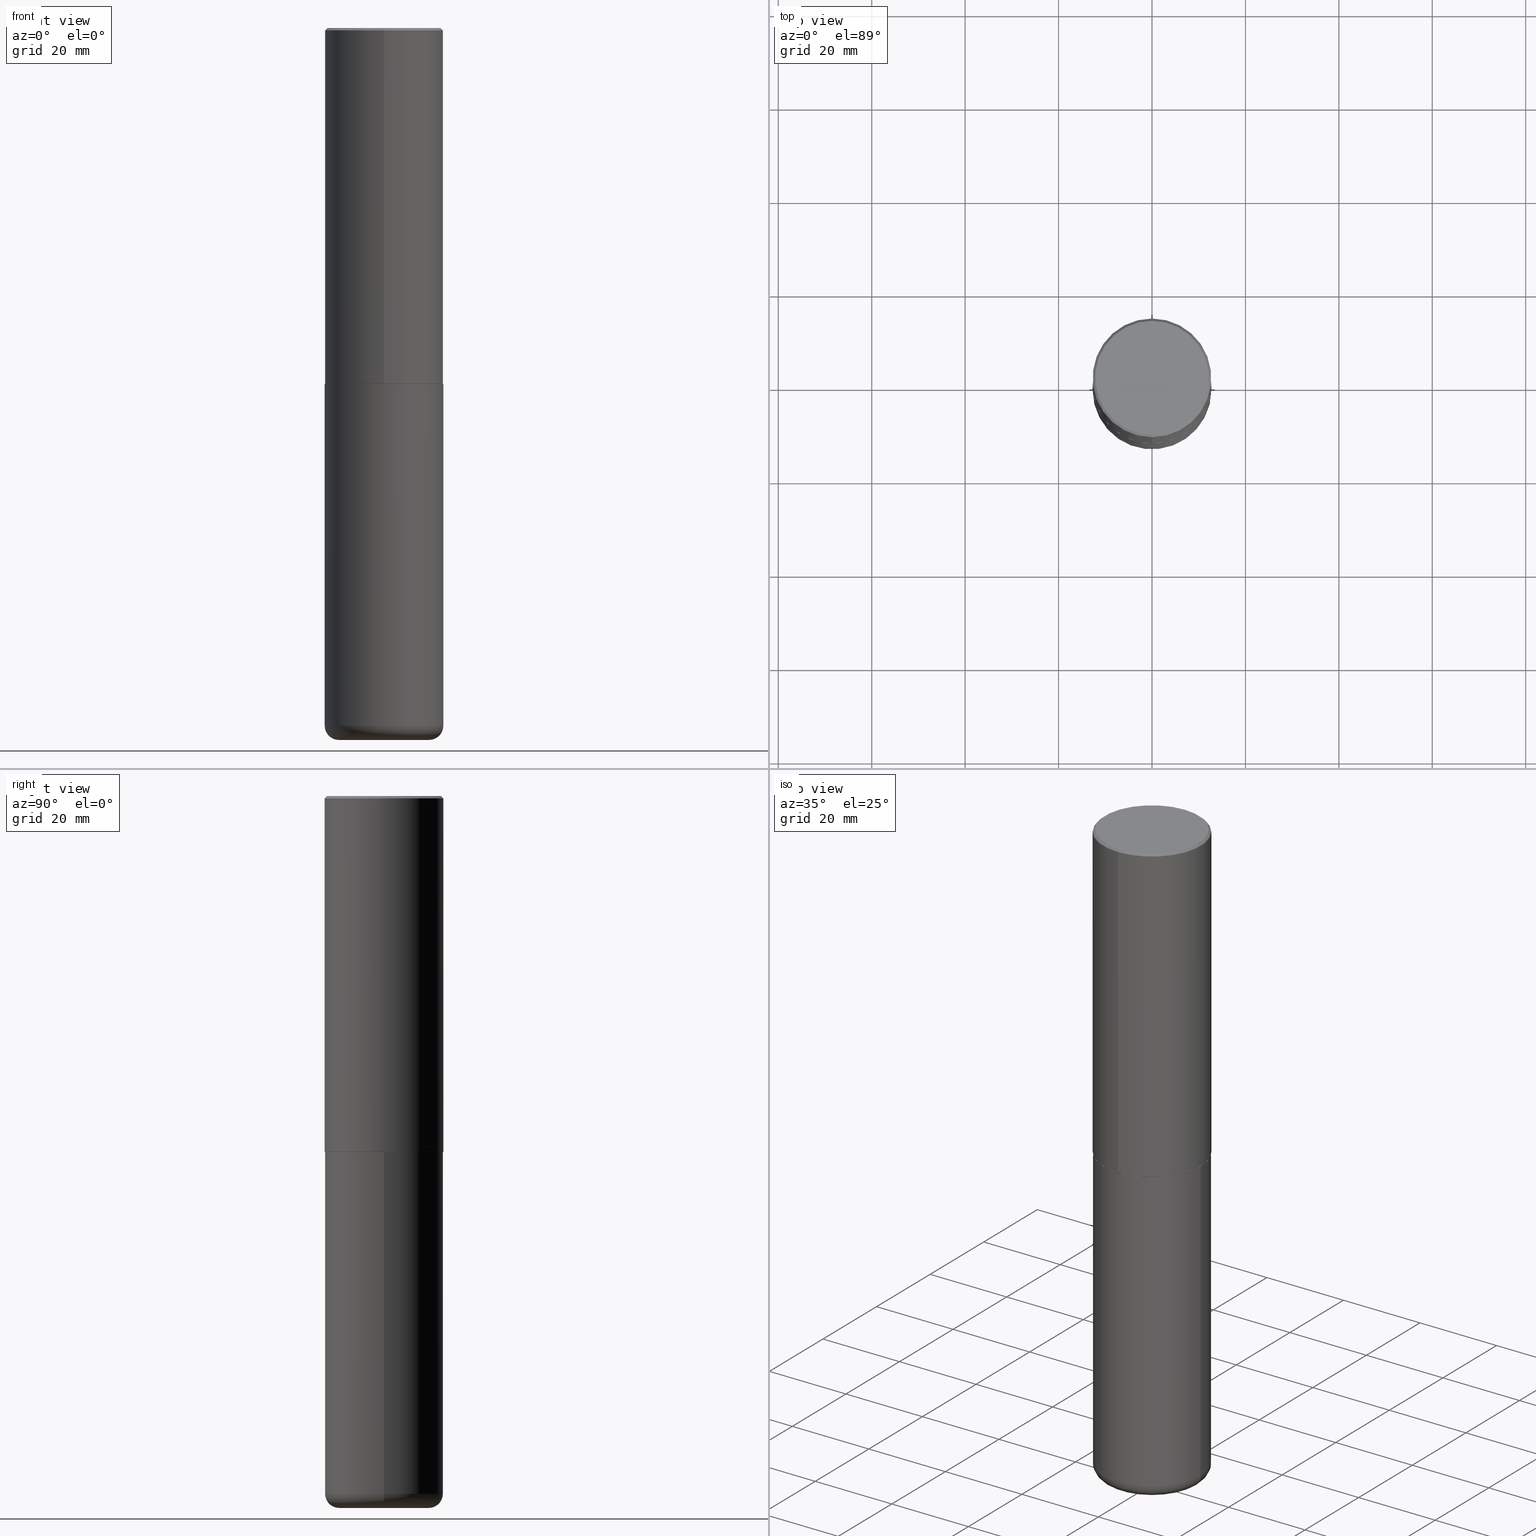
[diagram: canonical four-view strip — front | top / right | iso, engineering-drawing reading convention]
A machine part, canonical four-view strip (front | top / right | iso — engineering-drawing reading convention). The complete STEP part file that produces these views, byte-faithful:
ISO-10303-21;
HEADER;
FILE_DESCRIPTION (( 'STEP AP203' ),
    '1' );
FILE_NAME ('37734.STEP',
    '2024-03-02T09:48:13',
    ( '' ),
    ( '' ),
    'SwSTEP 2.0',
    'SolidWorks 2023',
    '' );
FILE_SCHEMA (( 'CONFIG_CONTROL_DESIGN' ));
ENDSEC;

DATA;
#1 = FACE_OUTER_BOUND ( 'NONE', #327, .T. ) ;
#2 = DIRECTION ( 'NONE',  ( -2.444898033699712212E-29, 3.492298717528625990E-15, 1.000000000000000000 ) ) ;
#3 = ORIENTED_EDGE ( 'NONE', *, *, #210, .F. ) ;
#4 = DIRECTION ( 'NONE',  ( -6.982962677686265922E-15, -1.000000000000000000, 3.491643216902136408E-15 ) ) ;
#5 = FACE_OUTER_BOUND ( 'NONE', #81, .T. ) ;
#6 = PRODUCT_DEFINITION_SHAPE ( 'NONE', 'NONE',  #220 ) ;
#7 = CARTESIAN_POINT ( 'NONE',  ( 0.000000000000000000, 0.000000000000000000, 0.000000000000000000 ) ) ;
#8 = CIRCLE ( 'NONE', #194, 0.1199999999999999539 ) ;
#9 = CC_DESIGN_SECURITY_CLASSIFICATION ( #375, ( #137 ) ) ;
#10 = ORIENTED_EDGE ( 'NONE', *, *, #321, .T. ) ;
#11 = CC_DESIGN_PERSON_AND_ORGANIZATION_ASSIGNMENT ( #84, #183, ( #375 ) ) ;
#12 = LENGTH_MEASURE_WITH_UNIT ( LENGTH_MEASURE( 0.02539999999999999897 ), #333 );
#13 = ORIENTED_EDGE ( 'NONE', *, *, #369, .T. ) ;
#14 = DIRECTION ( 'NONE',  ( -2.445468806185136597E-29, 3.491481338843145583E-15, 1.000000000000000000 ) ) ;
#15 = ADVANCED_FACE ( 'NONE', ( #92 ), #184, .T. ) ;
#16 = ORIENTED_EDGE ( 'NONE', *, *, #305, .T. ) ;
#17 = AXIS2_PLACEMENT_3D ( 'NONE', #343, #379, #59 ) ;
#18 = ORIENTED_EDGE ( 'NONE', *, *, #176, .T. ) ;
#19 = EDGE_CURVE ( 'NONE', #355, #38, #157, .T. ) ;
#20 = DIRECTION ( 'NONE',  ( -6.982962677686265922E-15, -1.000000000000000000, 3.492298717528625990E-15 ) ) ;
#21 = CC_DESIGN_DATE_AND_TIME_ASSIGNMENT ( #412, #370, ( #220 ) ) ;
#22 = DATE_TIME_ROLE ( 'classification_date' ) ;
#23 = DIRECTION ( 'NONE',  ( -2.445468806185136597E-29, 3.491481338843145583E-15, 1.000000000000000000 ) ) ;
#24 = APPROVAL_DATE_TIME ( #349, #142 ) ;
#25 = CARTESIAN_POINT ( 'NONE',  ( 7.334694101099137475E-29, -1.047689615258587837E-14, -3.000000000000000444 ) ) ;
#26 = AXIS2_PLACEMENT_3D ( 'NONE', #151, #288, #314 ) ;
#27 = CIRCLE ( 'NONE', #96, 0.5000000000000002220 ) ;
#28 = DIRECTION ( 'NONE',  ( -6.982962677686265922E-15, -1.000000000000000000, 3.284787166730577015E-15 ) ) ;
#29 = CARTESIAN_POINT ( 'NONE',  ( 1.437935658036860328E-28, -2.052991027239769923E-14, -5.880000000000000782 ) ) ;
#30 = EDGE_CURVE ( 'NONE', #306, #362, #78, .T. ) ;
#31 = PLANE ( 'NONE',  #136 ) ;
#32 = ORIENTED_EDGE ( 'NONE', *, *, #85, .F. ) ;
#33 = AXIS2_PLACEMENT_3D ( 'NONE', #25, #181, #318 ) ;
#34 = FACE_OUTER_BOUND ( 'NONE', #390, .T. ) ;
#35 = ORIENTED_EDGE ( 'NONE', *, *, #290, .F. ) ;
#36 = CC_DESIGN_PERSON_AND_ORGANIZATION_ASSIGNMENT ( #215, #372, ( #137 ) ) ;
#37 = CARTESIAN_POINT ( 'NONE',  ( 4.889796067399450837E-31, -6.984597435057287381E-17, -0.02000000000000010797 ) ) ;
#38 = VERTEX_POINT ( 'NONE', #152 ) ;
#39 = DIRECTION ( 'NONE',  ( 6.982962677686265922E-15, 1.000000000000000000, -3.491643216902136408E-15 ) ) ;
#40 = ORIENTED_EDGE ( 'NONE', *, *, #85, .T. ) ;
#41 = PLANE ( 'NONE',  #381 ) ;
#42 = PERSON ( 'UNSPECIFIED', 'UNSPECIFIED', 'UNSPECIFIED', ('UNSPECIFIED'), ('UNSPECIFIED'), ('UNSPECIFIED') ) ;
#43 = DIRECTION ( 'NONE',  ( -6.982962677686265922E-15, -1.000000000000000000, 3.492298717528625990E-15 ) ) ;
#44 = CONICAL_SURFACE ( 'NONE', #374, 0.5000000000000000000, 0.7853981633974446153 ) ;
#45 = CARTESIAN_POINT ( 'NONE',  ( -3.484498376165373188E-15, -0.4990000000000104352, -2.999999999999998668 ) ) ;
#46 = AXIS2_PLACEMENT_3D ( 'NONE', #132, #199, #193 ) ;
#47 = EDGE_LOOP ( 'NONE', ( #242, #40, #340, #316 ) ) ;
#48 = CYLINDRICAL_SURFACE ( 'NONE', #66, 0.5000000000000000000 ) ;
#49 = ORIENTED_EDGE ( 'NONE', *, *, #383, .F. ) ;
#50 = CARTESIAN_POINT ( 'NONE',  ( 0.000000000000000000, 0.000000000000000000, 0.000000000000000000 ) ) ;
#51 = ORIENTED_EDGE ( 'NONE', *, *, #305, .F. ) ;
#52 = CC_DESIGN_DATE_AND_TIME_ASSIGNMENT ( #346, #22, ( #375 ) ) ;
#53 = PLANE ( 'NONE',  #106 ) ;
#54 = LINE ( 'NONE', #409, #112 ) ;
#55 = APPROVAL_ROLE ( '' ) ;
#56 = APPLICATION_CONTEXT ( 'configuration controlled 3d designs of mechanical parts and assemblies' ) ;
#57 = DIRECTION ( 'NONE',  ( 4.937700262164529898E-15, 0.7071067811865424657, -0.7071067811865525687 ) ) ;
#58 = DESIGN_CONTEXT ( 'detailed design', #56, 'design' ) ;
#59 = DIRECTION ( 'NONE',  ( -6.982962677686266711E-15, -1.000000000000000000, 3.278217592397114284E-15 ) ) ;
#60 = CIRCLE ( 'NONE', #124, 0.5000000000000000000 ) ;
#61 = COORDINATED_UNIVERSAL_TIME_OFFSET ( 5, 0, .BEHIND. ) ;
#62 = DIRECTION ( 'NONE',  ( -6.982962677686265922E-15, -1.000000000000000000, 3.491643216902136408E-15 ) ) ;
#63 = DIRECTION ( 'NONE',  ( -2.445468806185136597E-29, 3.491481338843145583E-15, 1.000000000000000000 ) ) ;
#64 = ORIENTED_EDGE ( 'NONE', *, *, #162, .F. ) ;
#65 = CARTESIAN_POINT ( 'NONE',  ( 3.552713678800539584E-15, 0.4999999999999898970, -2.999000000000001886 ) ) ;
#66 = AXIS2_PLACEMENT_3D ( 'NONE', #7, #307, #135 ) ;
#67 = DIRECTION ( 'NONE',  ( 1.000000000000000000, -6.982962677686261977E-15, 0.000000000000000000 ) ) ;
#68 = CARTESIAN_POINT ( 'NONE',  ( 0.000000000000000000, 0.000000000000000000, 0.000000000000000000 ) ) ;
#69 = CARTESIAN_POINT ( 'NONE',  ( -0.5000000000000000000, 3.552713678800500929E-15, -2.459467545127452891E-29 ) ) ;
#70 = TOROIDAL_SURFACE ( 'NONE', #229, 0.3799999999999999489, 0.1199999999999999539 ) ;
#71 = CC_DESIGN_APPROVAL ( #281, ( #137 ) ) ;
#72 = ADVANCED_FACE ( 'NONE', ( #247 ), #185, .T. ) ;
#73 = DIRECTION ( 'NONE',  ( -4.937700262165728178E-15, -0.7071067811867141062, 0.7071067811863809283 ) ) ;
#74 = ORIENTED_EDGE ( 'NONE', *, *, #393, .T. ) ;
#75 = CARTESIAN_POINT ( 'NONE',  ( -3.491481338843061569E-15, -0.5000000000000107692, -2.998999999999998778 ) ) ;
#76 = CARTESIAN_POINT ( 'NONE',  ( 3.421651712066270057E-15, 0.4799999999999999267, -1.573466742882299844E-15 ) ) ;
#77 = EDGE_LOOP ( 'NONE', ( #18, #158 ) ) ;
#78 = CIRCLE ( 'NONE', #17, 0.5000000000000002220 ) ;
#79 = ORIENTED_EDGE ( 'NONE', *, *, #93, .T. ) ;
#80 = CYLINDRICAL_SURFACE ( 'NONE', #292, 0.5000000000000001110 ) ;
#81 = EDGE_LOOP ( 'NONE', ( #16, #418, #246, #145 ) ) ;
#82 = APPROVAL_STATUS ( 'not_yet_approved' ) ;
#83 = CARTESIAN_POINT ( 'NONE',  ( 7.336406418555409790E-29, -1.047444401652943635E-14, -3.000000000000000444 ) ) ;
#84 = PERSON_AND_ORGANIZATION ( #42, #186 ) ;
#85 = EDGE_CURVE ( 'NONE', #110, #128, #311, .T. ) ;
#86 = CARTESIAN_POINT ( 'NONE',  ( -3.484498376165373188E-15, -0.4990000000000104352, -2.999999999999998668 ) ) ;
#87 = CC_DESIGN_APPROVAL ( #90, ( #220 ) ) ;
#88 = PERSON_AND_ORGANIZATION ( #42, #186 ) ;
#89 = DIRECTION ( 'NONE',  ( 1.000000000000000000, -6.982962677686266711E-15, 0.000000000000000000 ) ) ;
#90 = APPROVAL ( #236, 'UNSPECIFIED' ) ;
#91 = SHAPE_DEFINITION_REPRESENTATION ( #6, #398 ) ;
#92 = FACE_OUTER_BOUND ( 'NONE', #271, .T. ) ;
#93 = EDGE_CURVE ( 'NONE', #110, #414, #251, .T. ) ;
#94 = COORDINATED_UNIVERSAL_TIME_OFFSET ( 5, 0, .BEHIND. ) ;
#95 = CARTESIAN_POINT ( 'NONE',  ( -0.3799999999999999489, -1.761301111538384868E-14, -6.000000000000000888 ) ) ;
#96 = AXIS2_PLACEMENT_3D ( 'NONE', #329, #2, #100 ) ;
#97 = MANIFOLD_SOLID_BREP ( 'Body-Move/Copy2[1]', #303 ) ;
#98 = DIRECTION ( 'NONE',  ( -2.445468806185136877E-29, 3.491481338843145188E-15, 1.000000000000000000 ) ) ;
#99 = ADVANCED_FACE ( 'NONE', ( #258 ), #53, .T. ) ;
#100 = DIRECTION ( 'NONE',  ( -6.982962677686266711E-15, -1.000000000000000000, 3.278217592397114284E-15 ) ) ;
#101 = DIRECTION ( 'NONE',  ( 1.000000000000000000, -6.982962677686266711E-15, 4.876176775795935793E-29 ) ) ;
#102 = DIRECTION ( 'NONE',  ( -1.000000000000000000, 7.105427357600993970E-15, 0.000000000000000000 ) ) ;
#103 = FACE_OUTER_BOUND ( 'NONE', #302, .T. ) ;
#104 = PERSON_AND_ORGANIZATION ( #42, #186 ) ;
#105 = ORIENTED_EDGE ( 'NONE', *, *, #210, .T. ) ;
#106 = AXIS2_PLACEMENT_3D ( 'NONE', #373, #282, #218 ) ;
#107 = VECTOR ( 'NONE', #352, 39.37007874015748143 ) ;
#108 = APPROVAL_ROLE ( '' ) ;
#109 = EDGE_CURVE ( 'NONE', #139, #280, #309, .T. ) ;
#110 = VERTEX_POINT ( 'NONE', #179 ) ;
#111 = CARTESIAN_POINT ( 'NONE',  ( -3.491481338843133750E-15, -0.5000000000000001110, 1.746149358764313390E-15 ) ) ;
#112 = VECTOR ( 'NONE', #188, 39.37007874015748143 ) ;
#113 = MECHANICAL_CONTEXT ( 'NONE', #155, 'mechanical' ) ;
#114 = ORIENTED_EDGE ( 'NONE', *, *, #182, .T. ) ;
#115 = COORDINATED_UNIVERSAL_TIME_OFFSET ( 5, 0, .BEHIND. ) ;
#116 = DIRECTION ( 'NONE',  ( -4.851104656540946131E-15, -0.7071067811865473507, -0.7071067811865476838 ) ) ;
#117 = CALENDAR_DATE ( 2024, 2, 3 ) ;
#118 = DIRECTION ( 'NONE',  ( -2.444898033699712212E-29, 3.492298717528625990E-15, 1.000000000000000000 ) ) ;
#119 = CC_DESIGN_APPROVAL ( #142, ( #375 ) ) ;
#120 = CARTESIAN_POINT ( 'NONE',  ( 3.545608251442972496E-15, 0.4989999999999895630, -3.000000000000001776 ) ) ;
#121 = CALENDAR_DATE ( 2024, 2, 3 ) ;
#122 = CARTESIAN_POINT ( 'NONE',  ( 7.336406418555409790E-29, -1.047444401652943635E-14, -3.000000000000000444 ) ) ;
#123 = CARTESIAN_POINT ( 'NONE',  ( 3.491481338843133355E-15, 0.4999999999999999445, -0.02000000000000185310 ) ) ;
#124 = AXIS2_PLACEMENT_3D ( 'NONE', #213, #118, #62 ) ;
#125 = VECTOR ( 'NONE', #73, 39.37007874015748143 ) ;
#126 = CC_DESIGN_PERSON_AND_ORGANIZATION_ASSIGNMENT ( #254, #149, ( #137 ) ) ;
#127 = FACE_OUTER_BOUND ( 'NONE', #244, .T. ) ;
#128 = VERTEX_POINT ( 'NONE', #250 ) ;
#129 = FACE_OUTER_BOUND ( 'NONE', #360, .T. ) ;
#130 = CARTESIAN_POINT ( 'NONE',  ( 3.549160965121773789E-15, 0.4989999999999895630, -3.000000000000001776 ) ) ;
#131 = ORIENTED_EDGE ( 'NONE', *, *, #170, .F. ) ;
#132 = CARTESIAN_POINT ( 'NONE',  ( 1.437935658036860328E-28, -2.052991027239769923E-14, -5.880000000000000782 ) ) ;
#133 = APPLICATION_PROTOCOL_DEFINITION ( 'international standard', 'config_control_design', 1994, #155 ) ;
#134 = ORIENTED_EDGE ( 'NONE', *, *, #165, .T. ) ;
#135 = DIRECTION ( 'NONE',  ( 1.000000000000000000, -6.982962677686266711E-15, 4.876176775795935793E-29 ) ) ;
#136 = AXIS2_PLACEMENT_3D ( 'NONE', #266, #385, #156 ) ;
#137 = PRODUCT_DEFINITION_FORMATION_WITH_SPECIFIED_SOURCE ( 'ANY', '', #227, .NOT_KNOWN. ) ;
#138 = PERSON_AND_ORGANIZATION ( #42, #186 ) ;
#139 = VERTEX_POINT ( 'NONE', #86 ) ;
#140 = CARTESIAN_POINT ( 'NONE',  ( 1.437935658036860328E-28, -2.052991027239769923E-14, -5.880000000000000782 ) ) ;
#141 = ORIENTED_EDGE ( 'NONE', *, *, #356, .T. ) ;
#142 = APPROVAL ( #344, 'UNSPECIFIED' ) ;
#143 = VERTEX_POINT ( 'NONE', #95 ) ;
#144 = CIRCLE ( 'NONE', #222, 0.5000000000000000000 ) ;
#145 = ORIENTED_EDGE ( 'NONE', *, *, #393, .F. ) ;
#146 = CARTESIAN_POINT ( 'NONE',  ( -2.514251026725007597E-45, 3.591362713352002573E-31, 1.028366415314403880E-16 ) ) ;
#147 = PERSON_AND_ORGANIZATION_ROLE ( 'creator' ) ;
#148 = DIRECTION ( 'NONE',  ( -2.445468806185136597E-29, 3.491481338843145583E-15, 1.000000000000000000 ) ) ;
#149 = PERSON_AND_ORGANIZATION_ROLE ( 'creator' ) ;
#150 = AXIS2_PLACEMENT_3D ( 'NONE', #187, #317, #28 ) ;
#151 = CARTESIAN_POINT ( 'NONE',  ( 7.336406418555409790E-29, -1.047444401652943635E-14, -3.000000000000000444 ) ) ;
#152 = CARTESIAN_POINT ( 'NONE',  ( 0.5000000000000000000, -1.396592535537257129E-14, -3.000000000000000444 ) ) ;
#153 = DIRECTION ( 'NONE',  ( -2.445468806185136597E-29, 3.491481338843145583E-15, 1.000000000000000000 ) ) ;
#154 = ADVANCED_FACE ( 'NONE', ( #219 ), #350, .F. ) ;
#155 = APPLICATION_CONTEXT ( 'configuration controlled 3d designs of mechanical parts and assemblies' ) ;
#156 = DIRECTION ( 'NONE',  ( -6.982962677686265922E-15, -1.000000000000000000, 3.492298717528626385E-15 ) ) ;
#157 = CIRCLE ( 'NONE', #394, 0.5000000000000000000 ) ;
#158 = ORIENTED_EDGE ( 'NONE', *, *, #19, .T. ) ;
#159 = AXIS2_PLACEMENT_3D ( 'NONE', #241, #202, #335 ) ;
#160 = DIRECTION ( 'NONE',  ( -6.982962677686265922E-15, -1.000000000000000000, 3.492298717528625990E-15 ) ) ;
#161 = ORIENTED_EDGE ( 'NONE', *, *, #162, .T. ) ;
#162 = EDGE_CURVE ( 'NONE', #269, #128, #60, .T. ) ;
#163 = CYLINDRICAL_SURFACE ( 'NONE', #279, 0.5000000000000000000 ) ;
#164 = ORIENTED_EDGE ( 'NONE', *, *, #248, .T. ) ;
#165 = EDGE_CURVE ( 'NONE', #294, #143, #274, .T. ) ;
#166 = DIRECTION ( 'NONE',  ( 7.105427357601001859E-15, 1.000000000000000000, -3.491481338843145583E-15 ) ) ;
#167 = ORIENTED_EDGE ( 'NONE', *, *, #109, .F. ) ;
#168 = DIRECTION ( 'NONE',  ( -2.444898033699712212E-29, 3.492298717528625990E-15, 1.000000000000000000 ) ) ;
#169 = DIRECTION ( 'NONE',  ( -2.444898033699711931E-29, 3.492298717528626385E-15, 1.000000000000000000 ) ) ;
#170 = EDGE_CURVE ( 'NONE', #306, #269, #54, .T. ) ;
#171 = CIRCLE ( 'NONE', #337, 0.4989999999999999991 ) ;
#172 = AXIS2_PLACEMENT_3D ( 'NONE', #401, #275, #301 ) ;
#173 = ORIENTED_EDGE ( 'NONE', *, *, #353, .F. ) ;
#174 = CARTESIAN_POINT ( 'NONE',  ( -0.5000000000000000000, -1.194946346566306607E-14, -3.000000000000000444 ) ) ;
#175 = DIRECTION ( 'NONE',  ( 1.000000000000000000, 0.000000000000000000, 0.000000000000000000 ) ) ;
#176 = EDGE_CURVE ( 'NONE', #38, #355, #278, .T. ) ;
#177 = ORIENTED_EDGE ( 'NONE', *, *, #176, .F. ) ;
#178 = CIRCLE ( 'NONE', #416, 0.3799999999999999489 ) ;
#179 = CARTESIAN_POINT ( 'NONE',  ( -3.361644018908049661E-15, -0.4799999999999999267, 1.779140025945180744E-15 ) ) ;
#180 = APPROVAL_DATE_TIME ( #249, #281 ) ;
#181 = DIRECTION ( 'NONE',  ( -2.444898033699712212E-29, 3.492298717528625990E-15, 1.000000000000000000 ) ) ;
#182 = EDGE_CURVE ( 'NONE', #414, #269, #284, .T. ) ;
#183 = PERSON_AND_ORGANIZATION_ROLE ( 'classification_officer' ) ;
#184 = CYLINDRICAL_SURFACE ( 'NONE', #387, 0.5000000000000001110 ) ;
#185 = CONICAL_SURFACE ( 'NONE', #150, 0.4989999999999999991, 0.7853981633976873100 ) ;
#186 = ORGANIZATION ( 'UNSPECIFIED', 'UNSPECIFIED', '' ) ;
#187 = CARTESIAN_POINT ( 'NONE',  ( 7.334694101099137475E-29, -1.047689615258587837E-14, -3.000000000000000444 ) ) ;
#188 = DIRECTION ( 'NONE',  ( -2.444898033699711931E-29, 3.492298717528626385E-15, 1.000000000000000000 ) ) ;
#189 = DIMENSIONAL_EXPONENTS ( 1.000000000000000000, 0.000000000000000000, 0.000000000000000000, 0.000000000000000000, 0.000000000000000000, 0.000000000000000000, 0.000000000000000000 ) ;
#190 = DIRECTION ( 'NONE',  ( 2.444898033699711371E-29, -3.492298717528626385E-15, -1.000000000000000000 ) ) ;
#191 = ADVANCED_FACE ( 'NONE', ( #342 ), #70, .T. ) ;
#192 = ORIENTED_EDGE ( 'NONE', *, *, #369, .F. ) ;
#193 = DIRECTION ( 'NONE',  ( 1.000000000000000000, -6.982962677686264344E-15, 4.883557194083112340E-29 ) ) ;
#194 = AXIS2_PLACEMENT_3D ( 'NONE', #298, #166, #102 ) ;
#195 = LOCAL_TIME ( 4, 48, 12.00000000000000000, #94 ) ;
#196 = EDGE_LOOP ( 'NONE', ( #336, #10, #177, #35 ) ) ;
#197 = CARTESIAN_POINT ( 'NONE',  ( 0.5000000000000000000, -3.491481338843133355E-15, 2.438088387897967896E-29 ) ) ;
#198 = ORIENTED_EDGE ( 'NONE', *, *, #256, .F. ) ;
#199 = DIRECTION ( 'NONE',  ( -2.445468806185136597E-29, 3.491481338843145583E-15, 1.000000000000000000 ) ) ;
#200 = CIRCLE ( 'NONE', #159, 0.1199999999999999539 ) ;
#201 = CC_DESIGN_PERSON_AND_ORGANIZATION_ASSIGNMENT ( #217, #147, ( #220 ) ) ;
#202 = DIRECTION ( 'NONE',  ( -6.982962677686266711E-15, -1.000000000000000000, 3.491481338843145583E-15 ) ) ;
#203 = EDGE_LOOP ( 'NONE', ( #276, #404 ) ) ;
#204 =( NAMED_UNIT ( * ) PLANE_ANGLE_UNIT ( ) SI_UNIT ( $, .RADIAN. ) );
#205 = CALENDAR_DATE ( 2024, 2, 3 ) ;
#206 = CONICAL_SURFACE ( 'NONE', #267, 0.5000000000000000000, 0.7853981633974446153 ) ;
#207 =( GEOMETRIC_REPRESENTATION_CONTEXT ( 3 ) GLOBAL_UNCERTAINTY_ASSIGNED_CONTEXT ( ( #319 ) ) GLOBAL_UNIT_ASSIGNED_CONTEXT ( ( #211, #204, #339 ) ) REPRESENTATION_CONTEXT ( 'NONE', 'WORKASPACE' ) );
#208 = CARTESIAN_POINT ( 'NONE',  ( 0.000000000000000000, 0.000000000000000000, 0.000000000000000000 ) ) ;
#209 = ORIENTED_EDGE ( 'NONE', *, *, #356, .F. ) ;
#210 = EDGE_CURVE ( 'NONE', #280, #306, #407, .T. ) ;
#211 =( CONVERSION_BASED_UNIT ( 'INCH', #12 ) LENGTH_UNIT ( ) NAMED_UNIT ( #189 ) );
#212 = EDGE_LOOP ( 'NONE', ( #3, #405, #13, #397 ) ) ;
#213 = CARTESIAN_POINT ( 'NONE',  ( 4.889796067399450837E-31, -6.984597435057287381E-17, -0.02000000000000010797 ) ) ;
#214 = CIRCLE ( 'NONE', #286, 0.5000000000000001110 ) ;
#215 = PERSON_AND_ORGANIZATION ( #42, #186 ) ;
#216 = DIRECTION ( 'NONE',  ( 1.000000000000000000, -6.982962677686261977E-15, 0.000000000000000000 ) ) ;
#217 = PERSON_AND_ORGANIZATION ( #42, #186 ) ;
#218 = DIRECTION ( 'NONE',  ( -1.000000000000000000, 6.982962677686265922E-15, -4.876176775795935793E-29 ) ) ;
#219 = FACE_OUTER_BOUND ( 'NONE', #77, .T. ) ;
#220 = PRODUCT_DEFINITION ( 'UNKNOWN', '', #137, #58 ) ;
#221 = COORDINATED_UNIVERSAL_TIME_OFFSET ( 5, 0, .BEHIND. ) ;
#222 = AXIS2_PLACEMENT_3D ( 'NONE', #296, #384, #4 ) ;
#223 = CARTESIAN_POINT ( 'NONE',  ( -3.430248998885764992E-15, -0.5000000000000001110, -0.01999999999999835937 ) ) ;
#224 = ADVANCED_FACE ( 'NONE', ( #127 ), #31, .F. ) ;
#225 = LINE ( 'NONE', #69, #107 ) ;
#226 = CARTESIAN_POINT ( 'NONE',  ( -0.5000000000000000000, -1.697719659359719830E-14, -5.880000000000000782 ) ) ;
#227 = PRODUCT ( '37734', '37734', '', ( #113 ) ) ;
#228 = CARTESIAN_POINT ( 'NONE',  ( 7.334694101099137475E-29, -1.047689615258587837E-14, -3.000000000000000444 ) ) ;
#229 = AXIS2_PLACEMENT_3D ( 'NONE', #29, #253, #345 ) ;
#230 = EDGE_CURVE ( 'NONE', #143, #294, #178, .T. ) ;
#231 = VECTOR ( 'NONE', #98, 39.37007874015748143 ) ;
#232 = CARTESIAN_POINT ( 'NONE',  ( 4.889796067399450837E-31, -6.984597435057287381E-17, -0.02000000000000010797 ) ) ;
#233 = MANIFOLD_SOLID_BREP ( 'Body-Move/Copy2[2]', #238 ) ;
#234 = ORIENTED_EDGE ( 'NONE', *, *, #290, .T. ) ;
#235 = DIRECTION ( 'NONE',  ( -2.444898033699712212E-29, 3.492298717528625990E-15, 1.000000000000000000 ) ) ;
#236 = APPROVAL_STATUS ( 'not_yet_approved' ) ;
#237 = ORIENTED_EDGE ( 'NONE', *, *, #334, .T. ) ;
#238 = CLOSED_SHELL ( 'NONE', ( #72, #377, #259, #240, #15, #265, #224, #341 ) ) ;
#239 = APPROVAL_PERSON_ORGANIZATION ( #104, #90, #108 ) ;
#240 = ADVANCED_FACE ( 'NONE', ( #103 ), #44, .T. ) ;
#241 = CARTESIAN_POINT ( 'NONE',  ( 0.3799999999999999489, -2.318343608991847616E-14, -5.880000000000000782 ) ) ;
#242 = ORIENTED_EDGE ( 'NONE', *, *, #93, .F. ) ;
#243 = ORIENTED_EDGE ( 'NONE', *, *, #321, .F. ) ;
#244 = EDGE_LOOP ( 'NONE', ( #167, #198 ) ) ;
#245 = CONICAL_SURFACE ( 'NONE', #324, 0.4989999999999999991, 0.7853981633976873100 ) ;
#246 = ORIENTED_EDGE ( 'NONE', *, *, #295, .F. ) ;
#247 = FACE_OUTER_BOUND ( 'NONE', #386, .T. ) ;
#248 = EDGE_CURVE ( 'NONE', #143, #308, #8, .T. ) ;
#249 = DATE_AND_TIME ( #117, #261 ) ;
#250 = CARTESIAN_POINT ( 'NONE',  ( -3.430248998885764992E-15, -0.5000000000000001110, -0.01999999999999835937 ) ) ;
#251 = CIRCLE ( 'NONE', #285, 0.4799999999999999267 ) ;
#252 = TOROIDAL_SURFACE ( 'NONE', #46, 0.3799999999999999489, 0.1199999999999999539 ) ;
#253 = DIRECTION ( 'NONE',  ( -2.445468806185136597E-29, 3.491481338843145583E-15, 1.000000000000000000 ) ) ;
#254 = PERSON_AND_ORGANIZATION ( #42, #186 ) ;
#255 = CARTESIAN_POINT ( 'NONE',  ( 3.491481338843133355E-15, 0.4999999999999999445, -0.02000000000000185310 ) ) ;
#256 = EDGE_CURVE ( 'NONE', #280, #139, #171, .T. ) ;
#257 = CALENDAR_DATE ( 2024, 2, 3 ) ;
#258 = FACE_OUTER_BOUND ( 'NONE', #203, .T. ) ;
#259 = ADVANCED_FACE ( 'NONE', ( #325 ), #206, .T. ) ;
#260 = AXIS2_PLACEMENT_3D ( 'NONE', #83, #148, #376 ) ;
#261 = LOCAL_TIME ( 4, 48, 12.00000000000000000, #115 ) ;
#262 = DIRECTION ( 'NONE',  ( -6.982962677686265922E-15, -1.000000000000000000, 3.284787166730577015E-15 ) ) ;
#263 = ADVANCED_FACE ( 'NONE', ( #129 ), #163, .T. ) ;
#264 = DIRECTION ( 'NONE',  ( -6.982962677686265922E-15, -1.000000000000000000, 3.284787166730577015E-15 ) ) ;
#265 = ADVANCED_FACE ( 'NONE', ( #357 ), #245, .T. ) ;
#266 = CARTESIAN_POINT ( 'NONE',  ( 7.334694101099137475E-29, -1.047689615258587837E-14, -3.000000000000000444 ) ) ;
#267 = AXIS2_PLACEMENT_3D ( 'NONE', #232, #354, #417 ) ;
#268 = DIRECTION ( 'NONE',  ( 5.024295867789263036E-15, 0.7071067811867189912, 0.7071067811863760433 ) ) ;
#269 = VERTEX_POINT ( 'NONE', #123 ) ;
#270 = CARTESIAN_POINT ( 'NONE',  ( 0.3799999999999999489, -2.360241385057965279E-14, -6.000000000000000888 ) ) ;
#271 = EDGE_LOOP ( 'NONE', ( #131, #368, #74, #64 ) ) ;
#272 = DIRECTION ( 'NONE',  ( -2.444898033699712212E-29, 3.492298717528625990E-15, 1.000000000000000000 ) ) ;
#273 = VERTEX_POINT ( 'NONE', #382 ) ;
#274 = CIRCLE ( 'NONE', #365, 0.3799999999999999489 ) ;
#275 = DIRECTION ( 'NONE',  ( -2.445468806185136597E-29, 3.491481338843145583E-15, 1.000000000000000000 ) ) ;
#276 = ORIENTED_EDGE ( 'NONE', *, *, #165, .F. ) ;
#277 = ORIENTED_EDGE ( 'NONE', *, *, #230, .T. ) ;
#278 = CIRCLE ( 'NONE', #260, 0.5000000000000000000 ) ;
#279 = AXIS2_PLACEMENT_3D ( 'NONE', #68, #63, #101 ) ;
#280 = VERTEX_POINT ( 'NONE', #130 ) ;
#281 = APPROVAL ( #82, 'UNSPECIFIED' ) ;
#282 = DIRECTION ( 'NONE',  ( 2.438088387897960049E-29, -3.491481338843145188E-15, -1.000000000000000000 ) ) ;
#283 = CALENDAR_DATE ( 2024, 2, 3 ) ;
#284 = LINE ( 'NONE', #255, #323 ) ;
#285 = AXIS2_PLACEMENT_3D ( 'NONE', #146, #289, #413 ) ;
#286 = AXIS2_PLACEMENT_3D ( 'NONE', #140, #14, #338 ) ;
#287 = PERSON_AND_ORGANIZATION ( #42, #186 ) ;
#288 = DIRECTION ( 'NONE',  ( 2.438088387897960049E-29, -3.491481338843145188E-15, -1.000000000000000000 ) ) ;
#289 = DIRECTION ( 'NONE',  ( -2.444898033699712212E-29, 3.492298717528625990E-15, 1.000000000000000000 ) ) ;
#290 = EDGE_CURVE ( 'NONE', #273, #38, #297, .T. ) ;
#291 = ORIENTED_EDGE ( 'NONE', *, *, #353, .T. ) ;
#292 = AXIS2_PLACEMENT_3D ( 'NONE', #208, #272, #43 ) ;
#293 = CARTESIAN_POINT ( 'NONE',  ( 7.334694101099137475E-29, -1.047689615258587837E-14, -3.000000000000000444 ) ) ;
#294 = VERTEX_POINT ( 'NONE', #270 ) ;
#295 = EDGE_CURVE ( 'NONE', #128, #269, #144, .T. ) ;
#296 = CARTESIAN_POINT ( 'NONE',  ( 4.889796067399450837E-31, -6.984597435057287381E-17, -0.02000000000000010797 ) ) ;
#297 = LINE ( 'NONE', #197, #231 ) ;
#298 = CARTESIAN_POINT ( 'NONE',  ( -0.3799999999999999489, -1.782984787650931928E-14, -5.880000000000000782 ) ) ;
#299 = LOCAL_TIME ( 4, 48, 12.00000000000000000, #221 ) ;
#300 = CARTESIAN_POINT ( 'NONE',  ( 1.467281283711081958E-28, -2.094888803305887271E-14, -6.000000000000000888 ) ) ;
#301 = DIRECTION ( 'NONE',  ( 1.000000000000000000, -6.982962677686269077E-15, 0.000000000000000000 ) ) ;
#302 = EDGE_LOOP ( 'NONE', ( #32, #332, #114, #161 ) ) ;
#303 = CLOSED_SHELL ( 'NONE', ( #415, #312, #154, #263, #191, #99 ) ) ;
#304 = AXIS2_PLACEMENT_3D ( 'NONE', #50, #367, #175 ) ;
#305 = EDGE_CURVE ( 'NONE', #362, #306, #27, .T. ) ;
#306 = VERTEX_POINT ( 'NONE', #65 ) ;
#307 = DIRECTION ( 'NONE',  ( -2.445468806185136597E-29, 3.491481338843145583E-15, 1.000000000000000000 ) ) ;
#308 = VERTEX_POINT ( 'NONE', #226 ) ;
#309 = CIRCLE ( 'NONE', #33, 0.4989999999999999991 ) ;
#310 = APPROVAL_PERSON_ORGANIZATION ( #88, #142, #55 ) ;
#311 = LINE ( 'NONE', #223, #380 ) ;
#312 = ADVANCED_FACE ( 'NONE', ( #34 ), #252, .T. ) ;
#313 = DATE_AND_TIME ( #205, #410 ) ;
#314 = DIRECTION ( 'NONE',  ( -1.000000000000000000, 6.982962677686265922E-15, -4.876176775795935793E-29 ) ) ;
#315 = APPROVAL_DATE_TIME ( #313, #90 ) ;
#316 = ORIENTED_EDGE ( 'NONE', *, *, #182, .F. ) ;
#317 = DIRECTION ( 'NONE',  ( -2.444898033699712212E-29, 3.492298717528625990E-15, 1.000000000000000000 ) ) ;
#318 = DIRECTION ( 'NONE',  ( -6.982962677686265922E-15, -1.000000000000000000, 3.284787166730577015E-15 ) ) ;
#319 = UNCERTAINTY_MEASURE_WITH_UNIT (LENGTH_MEASURE( 1.000000000000000082E-05 ), #211, 'distance_accuracy_value', 'NONE');
#320 = DIRECTION ( 'NONE',  ( -2.445468806185136597E-29, 3.491481338843145583E-15, 1.000000000000000000 ) ) ;
#321 = EDGE_CURVE ( 'NONE', #308, #355, #225, .T. ) ;
#322 = ORIENTED_EDGE ( 'NONE', *, *, #109, .T. ) ;
#323 = VECTOR ( 'NONE', #57, 39.37007874015748143 ) ;
#324 = AXIS2_PLACEMENT_3D ( 'NONE', #228, #326, #264 ) ;
#325 = FACE_OUTER_BOUND ( 'NONE', #47, .T. ) ;
#326 = DIRECTION ( 'NONE',  ( -2.444898033699712212E-29, 3.492298717528625990E-15, 1.000000000000000000 ) ) ;
#327 = EDGE_LOOP ( 'NONE', ( #237, #79 ) ) ;
#328 = EDGE_LOOP ( 'NONE', ( #402, #277, #141, #173 ) ) ;
#329 = CARTESIAN_POINT ( 'NONE',  ( 7.332249203065438921E-29, -1.047340385386834930E-14, -2.999000000000000554 ) ) ;
#330 = CIRCLE ( 'NONE', #172, 0.5000000000000001110 ) ;
#331 = LINE ( 'NONE', #111, #396 ) ;
#332 = ORIENTED_EDGE ( 'NONE', *, *, #334, .F. ) ;
#333 =( LENGTH_UNIT ( ) NAMED_UNIT ( * ) SI_UNIT ( $, .METRE. ) );
#334 = EDGE_CURVE ( 'NONE', #414, #110, #348, .T. ) ;
#335 = DIRECTION ( 'NONE',  ( 1.000000000000000000, -6.982962677686270655E-15, 0.000000000000000000 ) ) ;
#336 = ORIENTED_EDGE ( 'NONE', *, *, #383, .T. ) ;
#337 = AXIS2_PLACEMENT_3D ( 'NONE', #293, #168, #262 ) ;
#338 = DIRECTION ( 'NONE',  ( 1.000000000000000000, -6.982962677686269077E-15, 0.000000000000000000 ) ) ;
#339 =( NAMED_UNIT ( * ) SI_UNIT ( $, .STERADIAN. ) SOLID_ANGLE_UNIT ( ) );
#340 = ORIENTED_EDGE ( 'NONE', *, *, #295, .T. ) ;
#341 = ADVANCED_FACE ( 'NONE', ( #1 ), #41, .F. ) ;
#342 = FACE_OUTER_BOUND ( 'NONE', #328, .T. ) ;
#343 = CARTESIAN_POINT ( 'NONE',  ( 7.332249203065438921E-29, -1.047340385386834930E-14, -2.999000000000000554 ) ) ;
#344 = APPROVAL_STATUS ( 'not_yet_approved' ) ;
#345 = DIRECTION ( 'NONE',  ( 1.000000000000000000, -6.982962677686264344E-15, 4.883557194083112340E-29 ) ) ;
#346 = DATE_AND_TIME ( #121, #195 ) ;
#347 = DIRECTION ( 'NONE',  ( -2.444898033699712212E-29, 3.492298717528625990E-15, 1.000000000000000000 ) ) ;
#348 = CIRCLE ( 'NONE', #366, 0.4799999999999999267 ) ;
#349 = DATE_AND_TIME ( #257, #299 ) ;
#350 = PLANE ( 'NONE',  #26 ) ;
#351 = CARTESIAN_POINT ( 'NONE',  ( 3.351822085289407153E-15, 0.4799999999999999267, -1.624885063648019971E-15 ) ) ;
#352 = DIRECTION ( 'NONE',  ( -2.445468806185136877E-29, 3.491481338843145188E-15, 1.000000000000000000 ) ) ;
#353 = EDGE_CURVE ( 'NONE', #308, #273, #330, .T. ) ;
#354 = DIRECTION ( 'NONE',  ( 2.444898033699712212E-29, -3.492298717528625990E-15, -1.000000000000000000 ) ) ;
#355 = VERTEX_POINT ( 'NONE', #174 ) ;
#356 = EDGE_CURVE ( 'NONE', #294, #273, #200, .T. ) ;
#357 = FACE_OUTER_BOUND ( 'NONE', #212, .T. ) ;
#358 = VECTOR ( 'NONE', #268, 39.37007874015748143 ) ;
#359 = LOCAL_TIME ( 4, 48, 12.00000000000000000, #61 ) ;
#360 = EDGE_LOOP ( 'NONE', ( #243, #291, #234, #400 ) ) ;
#361 = PRODUCT_RELATED_PRODUCT_CATEGORY ( 'detail', '', ( #227 ) ) ;
#362 = VERTEX_POINT ( 'NONE', #75 ) ;
#363 = COORDINATED_UNIVERSAL_TIME_OFFSET ( 5, 0, .BEHIND. ) ;
#364 = LINE ( 'NONE', #45, #125 ) ;
#365 = AXIS2_PLACEMENT_3D ( 'NONE', #411, #153, #216 ) ;
#366 = AXIS2_PLACEMENT_3D ( 'NONE', #391, #235, #160 ) ;
#367 = DIRECTION ( 'NONE',  ( 0.000000000000000000, 0.000000000000000000, 1.000000000000000000 ) ) ;
#368 = ORIENTED_EDGE ( 'NONE', *, *, #30, .T. ) ;
#369 = EDGE_CURVE ( 'NONE', #139, #362, #364, .T. ) ;
#370 = DATE_TIME_ROLE ( 'creation_date' ) ;
#371 = CARTESIAN_POINT ( 'NONE',  ( 0.000000000000000000, 0.000000000000000000, 0.000000000000000000 ) ) ;
#372 = PERSON_AND_ORGANIZATION_ROLE ( 'design_supplier' ) ;
#373 = CARTESIAN_POINT ( 'NONE',  ( 1.467281283711081958E-28, -2.094888803305887271E-14, -6.000000000000000888 ) ) ;
#374 = AXIS2_PLACEMENT_3D ( 'NONE', #37, #389, #39 ) ;
#375 = SECURITY_CLASSIFICATION ( '', '', #378 ) ;
#376 = DIRECTION ( 'NONE',  ( 1.000000000000000000, -6.982962677686266711E-15, 0.000000000000000000 ) ) ;
#377 = ADVANCED_FACE ( 'NONE', ( #5 ), #80, .T. ) ;
#378 = SECURITY_CLASSIFICATION_LEVEL ( 'unclassified' ) ;
#379 = DIRECTION ( 'NONE',  ( -2.444898033699712212E-29, 3.492298717528625990E-15, 1.000000000000000000 ) ) ;
#380 = VECTOR ( 'NONE', #116, 39.37007874015748143 ) ;
#381 = AXIS2_PLACEMENT_3D ( 'NONE', #351, #190, #403 ) ;
#382 = CARTESIAN_POINT ( 'NONE',  ( 0.5000000000000000000, -2.402139161124082943E-14, -5.880000000000000782 ) ) ;
#383 = EDGE_CURVE ( 'NONE', #273, #308, #214, .T. ) ;
#384 = DIRECTION ( 'NONE',  ( -2.444898033699712212E-29, 3.492298717528625990E-15, 1.000000000000000000 ) ) ;
#385 = DIRECTION ( 'NONE',  ( -2.444898033699711371E-29, 3.492298717528626385E-15, 1.000000000000000000 ) ) ;
#386 = EDGE_LOOP ( 'NONE', ( #322, #105, #51, #192 ) ) ;
#387 = AXIS2_PLACEMENT_3D ( 'NONE', #371, #347, #20 ) ;
#388 = APPROVAL_PERSON_ORGANIZATION ( #287, #281, #406 ) ;
#389 = DIRECTION ( 'NONE',  ( 2.444898033699712212E-29, -3.492298717528625990E-15, -1.000000000000000000 ) ) ;
#390 = EDGE_LOOP ( 'NONE', ( #134, #164, #49, #209 ) ) ;
#391 = CARTESIAN_POINT ( 'NONE',  ( -2.514251026725007597E-45, 3.591362713352002573E-31, 1.028366415314403880E-16 ) ) ;
#392 = APPLICATION_PROTOCOL_DEFINITION ( 'international standard', 'config_control_design', 1994, #56 ) ;
#393 = EDGE_CURVE ( 'NONE', #362, #128, #331, .T. ) ;
#394 = AXIS2_PLACEMENT_3D ( 'NONE', #122, #23, #89 ) ;
#395 = FACE_OUTER_BOUND ( 'NONE', #196, .T. ) ;
#396 = VECTOR ( 'NONE', #169, 39.37007874015748143 ) ;
#397 = ORIENTED_EDGE ( 'NONE', *, *, #30, .F. ) ;
#398 = ADVANCED_BREP_SHAPE_REPRESENTATION ( '37734', ( #97, #233, #304 ), #207 ) ;
#399 = PERSON_AND_ORGANIZATION_ROLE ( 'design_owner' ) ;
#400 = ORIENTED_EDGE ( 'NONE', *, *, #19, .F. ) ;
#401 = CARTESIAN_POINT ( 'NONE',  ( 1.437935658036860328E-28, -2.052991027239769923E-14, -5.880000000000000782 ) ) ;
#402 = ORIENTED_EDGE ( 'NONE', *, *, #248, .F. ) ;
#403 = DIRECTION ( 'NONE',  ( 6.982962677686265922E-15, 1.000000000000000000, -3.492298717528626385E-15 ) ) ;
#404 = ORIENTED_EDGE ( 'NONE', *, *, #230, .F. ) ;
#405 = ORIENTED_EDGE ( 'NONE', *, *, #256, .T. ) ;
#406 = APPROVAL_ROLE ( '' ) ;
#407 = LINE ( 'NONE', #120, #358 ) ;
#408 = CC_DESIGN_PERSON_AND_ORGANIZATION_ASSIGNMENT ( #138, #399, ( #227 ) ) ;
#409 = CARTESIAN_POINT ( 'NONE',  ( 3.552713678800501718E-15, 0.5000000000000001110, -1.746149358764313390E-15 ) ) ;
#410 = LOCAL_TIME ( 4, 48, 12.00000000000000000, #363 ) ;
#411 = CARTESIAN_POINT ( 'NONE',  ( 1.467281283711081958E-28, -2.094888803305887271E-14, -6.000000000000000888 ) ) ;
#412 = DATE_AND_TIME ( #283, #359 ) ;
#413 = DIRECTION ( 'NONE',  ( -6.982962677686265922E-15, -1.000000000000000000, 3.492298717528625990E-15 ) ) ;
#414 = VERTEX_POINT ( 'NONE', #76 ) ;
#415 = ADVANCED_FACE ( 'NONE', ( #395 ), #48, .T. ) ;
#416 = AXIS2_PLACEMENT_3D ( 'NONE', #300, #320, #67 ) ;
#417 = DIRECTION ( 'NONE',  ( 6.982962677686265922E-15, 1.000000000000000000, -3.491643216902136408E-15 ) ) ;
#418 = ORIENTED_EDGE ( 'NONE', *, *, #170, .T. ) ;
ENDSEC;
END-ISO-10303-21;
